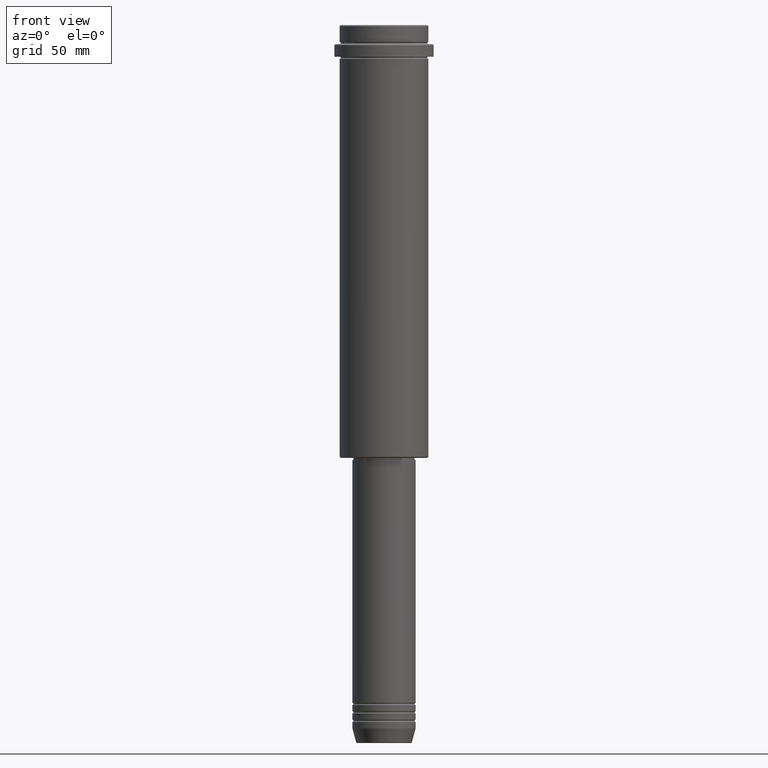
[diagram: clean part render]
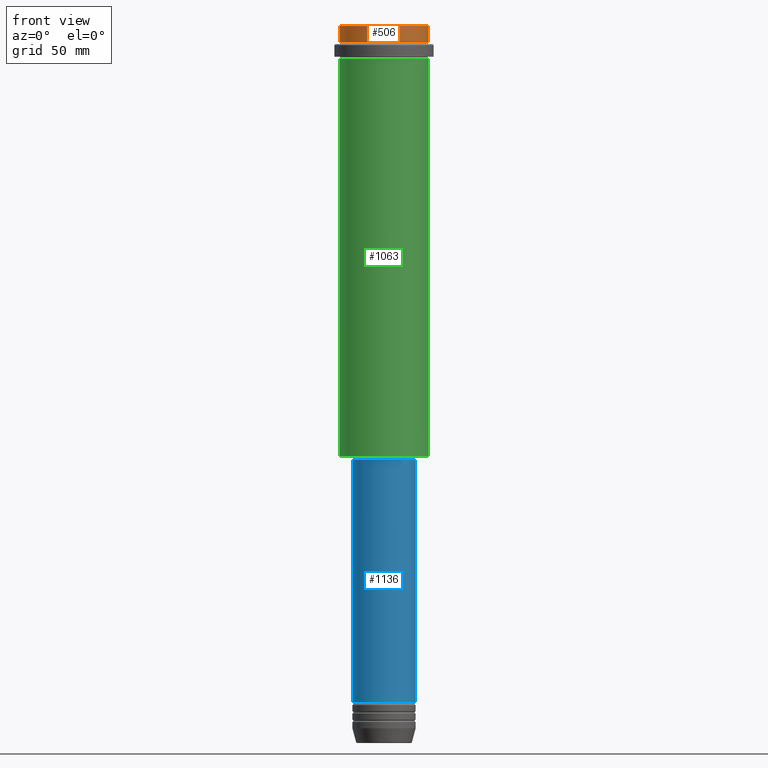
[diagram: same view with three faces highlighted in distinct colors, each labeled with its STEP entity id]
A machine part, front view with three faces highlighted in distinct colors.
Their STEP definitions:

[orange] entity #506 — the highlighted cylindrical surface (partial cylindrical patch) has radius 21 mm, axis along (-0, -0, 1).
#9 = CYLINDRICAL_SURFACE ( 'NONE', #196, 20.99999999999999645 ) ;
#14 = CARTESIAN_POINT ( 'NONE',  ( -20.99999999999999645, 2.571758278209441267E-15, -7.999999999999998224 ) ) ;
#28 = CARTESIAN_POINT ( 'NONE',  ( -20.99999999999999645, 2.571758278209441267E-15, -0.5000000000000628386 ) ) ;
#49 = EDGE_LOOP ( 'NONE', ( #268, #735, #1050, #1198 ) ) ;
#55 = VERTEX_POINT ( 'NONE', #28 ) ;
#63 = EDGE_CURVE ( 'NONE', #1059, #55, #701, .T. ) ;
#115 = DIRECTION ( 'NONE',  ( 1.000000000000000000, 0.000000000000000000, 0.000000000000000000 ) ) ;
#196 = AXIS2_PLACEMENT_3D ( 'NONE', #531, #859, #115 ) ;
#268 = ORIENTED_EDGE ( 'NONE', *, *, #63, .F. ) ;
#380 = LINE ( 'NONE', #608, #512 ) ;
#454 = EDGE_CURVE ( 'NONE', #598, #749, #380, .T. ) ;
#506 = ADVANCED_FACE ( 'NONE', ( #873 ), #9, .T. ) ;
#512 = VECTOR ( 'NONE', #841, 1000.000000000000000 ) ;
#531 = CARTESIAN_POINT ( 'NONE',  ( 0.000000000000000000, 0.000000000000000000, 0.000000000000000000 ) ) ;
#545 = AXIS2_PLACEMENT_3D ( 'NONE', #577, #1014, #595 ) ;
#577 = CARTESIAN_POINT ( 'NONE',  ( 0.000000000000000000, 0.000000000000000000, -0.5000000000000628386 ) ) ;
#595 = DIRECTION ( 'NONE',  ( 1.000000000000000000, 0.000000000000000000, 0.000000000000000000 ) ) ;
#598 = VERTEX_POINT ( 'NONE', #1408 ) ;
#608 = CARTESIAN_POINT ( 'NONE',  ( 20.99999999999999645, 0.000000000000000000, 0.000000000000000000 ) ) ;
#628 = DIRECTION ( 'NONE',  ( -0.000000000000000000, -0.000000000000000000, 1.000000000000000000 ) ) ;
#641 = CARTESIAN_POINT ( 'NONE',  ( 0.000000000000000000, 0.000000000000000000, -7.999999999999998224 ) ) ;
#701 = LINE ( 'NONE', #1134, #1185 ) ;
#735 = ORIENTED_EDGE ( 'NONE', *, *, #879, .T. ) ;
#749 = VERTEX_POINT ( 'NONE', #1256 ) ;
#807 = CIRCLE ( 'NONE', #545, 20.99999999999999645 ) ;
#841 = DIRECTION ( 'NONE',  ( -0.000000000000000000, -0.000000000000000000, 1.000000000000000000 ) ) ;
#859 = DIRECTION ( 'NONE',  ( -0.000000000000000000, -0.000000000000000000, 1.000000000000000000 ) ) ;
#873 = FACE_OUTER_BOUND ( 'NONE', #49, .T. ) ;
#879 = EDGE_CURVE ( 'NONE', #1059, #598, #1121, .T. ) ;
#895 = AXIS2_PLACEMENT_3D ( 'NONE', #641, #628, #1181 ) ;
#1014 = DIRECTION ( 'NONE',  ( 0.000000000000000000, 0.000000000000000000, -1.000000000000000000 ) ) ;
#1015 = DIRECTION ( 'NONE',  ( -0.000000000000000000, -0.000000000000000000, 1.000000000000000000 ) ) ;
#1050 = ORIENTED_EDGE ( 'NONE', *, *, #454, .T. ) ;
#1059 = VERTEX_POINT ( 'NONE', #14 ) ;
#1121 = CIRCLE ( 'NONE', #895, 20.99999999999999645 ) ;
#1134 = CARTESIAN_POINT ( 'NONE',  ( -20.99999999999999645, 2.571758278209441267E-15, 0.000000000000000000 ) ) ;
#1181 = DIRECTION ( 'NONE',  ( 1.000000000000000000, 0.000000000000000000, 0.000000000000000000 ) ) ;
#1185 = VECTOR ( 'NONE', #1015, 1000.000000000000000 ) ;
#1198 = ORIENTED_EDGE ( 'NONE', *, *, #1205, .T. ) ;
#1205 = EDGE_CURVE ( 'NONE', #749, #55, #807, .T. ) ;
#1256 = CARTESIAN_POINT ( 'NONE',  ( 20.99999999999999645, 0.000000000000000000, -0.5000000000000628386 ) ) ;
#1408 = CARTESIAN_POINT ( 'NONE',  ( 20.99999999999999645, 0.000000000000000000, -7.999999999999998224 ) ) ;

[blue] entity #1136 — the highlighted cylindrical surface (edge-blend (fillet) strip) has radius 15 mm, axis along (-0, -0, 1).
#4 = CARTESIAN_POINT ( 'NONE',  ( 0.000000000000000000, 0.000000000000000000, -205.9999999999999432 ) ) ;
#35 = CARTESIAN_POINT ( 'NONE',  ( 15.00000000000000000, 0.000000000000000000, -205.9999999999999432 ) ) ;
#50 = DIRECTION ( 'NONE',  ( -0.000000000000000000, -0.000000000000000000, 1.000000000000000000 ) ) ;
#117 = ORIENTED_EDGE ( 'NONE', *, *, #776, .F. ) ;
#189 = DIRECTION ( 'NONE',  ( -0.000000000000000000, -0.000000000000000000, 1.000000000000000000 ) ) ;
#213 = DIRECTION ( 'NONE',  ( -0.000000000000000000, -0.000000000000000000, 1.000000000000000000 ) ) ;
#270 = ORIENTED_EDGE ( 'NONE', *, *, #1412, .T. ) ;
#307 = DIRECTION ( 'NONE',  ( 1.000000000000000000, 0.000000000000000000, 0.000000000000000000 ) ) ;
#314 = EDGE_LOOP ( 'NONE', ( #117, #979, #270, #878 ) ) ;
#373 = CARTESIAN_POINT ( 'NONE',  ( -15.00000000000000000, 1.836970198721029589E-15, 0.000000000000000000 ) ) ;
#592 = DIRECTION ( 'NONE',  ( 1.000000000000000000, 0.000000000000000000, 0.000000000000000000 ) ) ;
#636 = EDGE_CURVE ( 'NONE', #1106, #1034, #1005, .T. ) ;
#709 = VECTOR ( 'NONE', #726, 1000.000000000000000 ) ;
#711 = CIRCLE ( 'NONE', #871, 15.00000000000000000 ) ;
#726 = DIRECTION ( 'NONE',  ( -0.000000000000000000, -0.000000000000000000, 1.000000000000000000 ) ) ;
#733 = VECTOR ( 'NONE', #1226, 1000.000000000000000 ) ;
#767 = CARTESIAN_POINT ( 'NONE',  ( -15.00000000000000000, 1.836970198721029589E-15, -320.9999999999998863 ) ) ;
#776 = EDGE_CURVE ( 'NONE', #1131, #1106, #1270, .T. ) ;
#778 = LINE ( 'NONE', #788, #733 ) ;
#788 = CARTESIAN_POINT ( 'NONE',  ( 15.00000000000000000, 0.000000000000000000, 0.000000000000000000 ) ) ;
#849 = AXIS2_PLACEMENT_3D ( 'NONE', #4, #189, #1298 ) ;
#871 = AXIS2_PLACEMENT_3D ( 'NONE', #1384, #50, #592 ) ;
#878 = ORIENTED_EDGE ( 'NONE', *, *, #636, .F. ) ;
#919 = VERTEX_POINT ( 'NONE', #1080 ) ;
#979 = ORIENTED_EDGE ( 'NONE', *, *, #1069, .T. ) ;
#1005 = CIRCLE ( 'NONE', #849, 15.00000000000000000 ) ;
#1034 = VERTEX_POINT ( 'NONE', #35 ) ;
#1053 = AXIS2_PLACEMENT_3D ( 'NONE', #1303, #213, #307 ) ;
#1069 = EDGE_CURVE ( 'NONE', #1131, #919, #711, .T. ) ;
#1080 = CARTESIAN_POINT ( 'NONE',  ( 15.00000000000000000, 0.000000000000000000, -320.9999999999998863 ) ) ;
#1103 = CARTESIAN_POINT ( 'NONE',  ( -15.00000000000000000, 1.836970198721029589E-15, -205.9999999999999432 ) ) ;
#1106 = VERTEX_POINT ( 'NONE', #1103 ) ;
#1131 = VERTEX_POINT ( 'NONE', #767 ) ;
#1136 = ADVANCED_FACE ( 'NONE', ( #1316 ), #1224, .T. ) ;
#1224 = CYLINDRICAL_SURFACE ( 'NONE', #1053, 15.00000000000000000 ) ;
#1226 = DIRECTION ( 'NONE',  ( -0.000000000000000000, -0.000000000000000000, 1.000000000000000000 ) ) ;
#1270 = LINE ( 'NONE', #373, #709 ) ;
#1298 = DIRECTION ( 'NONE',  ( 1.000000000000000000, 0.000000000000000000, 0.000000000000000000 ) ) ;
#1303 = CARTESIAN_POINT ( 'NONE',  ( 0.000000000000000000, 0.000000000000000000, 0.000000000000000000 ) ) ;
#1316 = FACE_OUTER_BOUND ( 'NONE', #314, .T. ) ;
#1384 = CARTESIAN_POINT ( 'NONE',  ( 0.000000000000000000, 0.000000000000000000, -320.9999999999998863 ) ) ;
#1412 = EDGE_CURVE ( 'NONE', #919, #1034, #778, .T. ) ;

[green] entity #1063 — the highlighted cylindrical surface (partial cylindrical patch) has radius 21 mm, axis along (-0, -0, 1).
#11 = VERTEX_POINT ( 'NONE', #242 ) ;
#18 = DIRECTION ( 'NONE',  ( -0.000000000000000000, -0.000000000000000000, 1.000000000000000000 ) ) ;
#71 = DIRECTION ( 'NONE',  ( -0.000000000000000000, -0.000000000000000000, 1.000000000000000000 ) ) ;
#87 = VECTOR ( 'NONE', #18, 1000.000000000000000 ) ;
#118 = LINE ( 'NONE', #198, #1004 ) ;
#192 = CARTESIAN_POINT ( 'NONE',  ( 0.000000000000000000, 0.000000000000000000, -16.00000000000000355 ) ) ;
#198 = CARTESIAN_POINT ( 'NONE',  ( 20.99999999999999645, 0.000000000000000000, 0.000000000000000000 ) ) ;
#207 = EDGE_CURVE ( 'NONE', #11, #1297, #118, .T. ) ;
#224 = ORIENTED_EDGE ( 'NONE', *, *, #469, .T. ) ;
#230 = VERTEX_POINT ( 'NONE', #974 ) ;
#242 = CARTESIAN_POINT ( 'NONE',  ( 20.99999999999999645, 0.000000000000000000, -204.5000000000000568 ) ) ;
#453 = EDGE_LOOP ( 'NONE', ( #509, #224, #561, #507 ) ) ;
#469 = EDGE_CURVE ( 'NONE', #230, #11, #1278, .T. ) ;
#494 = DIRECTION ( 'NONE',  ( -1.000000000000000000, 0.000000000000000000, 0.000000000000000000 ) ) ;
#507 = ORIENTED_EDGE ( 'NONE', *, *, #901, .F. ) ;
#509 = ORIENTED_EDGE ( 'NONE', *, *, #1107, .F. ) ;
#514 = AXIS2_PLACEMENT_3D ( 'NONE', #809, #886, #1320 ) ;
#534 = LINE ( 'NONE', #547, #87 ) ;
#547 = CARTESIAN_POINT ( 'NONE',  ( -20.99999999999999645, 2.571758278209441267E-15, 0.000000000000000000 ) ) ;
#556 = DIRECTION ( 'NONE',  ( -0.000000000000000000, -0.000000000000000000, 1.000000000000000000 ) ) ;
#561 = ORIENTED_EDGE ( 'NONE', *, *, #207, .T. ) ;
#570 = AXIS2_PLACEMENT_3D ( 'NONE', #192, #978, #1067 ) ;
#583 = CYLINDRICAL_SURFACE ( 'NONE', #514, 20.99999999999999645 ) ;
#798 = FACE_OUTER_BOUND ( 'NONE', #453, .T. ) ;
#809 = CARTESIAN_POINT ( 'NONE',  ( 0.000000000000000000, 0.000000000000000000, 0.000000000000000000 ) ) ;
#886 = DIRECTION ( 'NONE',  ( -0.000000000000000000, -0.000000000000000000, 1.000000000000000000 ) ) ;
#901 = EDGE_CURVE ( 'NONE', #1215, #1297, #1192, .T. ) ;
#906 = CARTESIAN_POINT ( 'NONE',  ( -20.99999999999999645, 2.571758278209441267E-15, -16.00000000000000355 ) ) ;
#974 = CARTESIAN_POINT ( 'NONE',  ( -20.99999999999999645, 2.571758278209441267E-15, -204.5000000000000568 ) ) ;
#978 = DIRECTION ( 'NONE',  ( -0.000000000000000000, -0.000000000000000000, 1.000000000000000000 ) ) ;
#1004 = VECTOR ( 'NONE', #556, 1000.000000000000000 ) ;
#1063 = ADVANCED_FACE ( 'NONE', ( #798 ), #583, .T. ) ;
#1067 = DIRECTION ( 'NONE',  ( 1.000000000000000000, 0.000000000000000000, 0.000000000000000000 ) ) ;
#1072 = AXIS2_PLACEMENT_3D ( 'NONE', #1268, #71, #494 ) ;
#1107 = EDGE_CURVE ( 'NONE', #230, #1215, #534, .T. ) ;
#1192 = CIRCLE ( 'NONE', #570, 20.99999999999999645 ) ;
#1215 = VERTEX_POINT ( 'NONE', #906 ) ;
#1268 = CARTESIAN_POINT ( 'NONE',  ( 0.000000000000000000, 0.000000000000000000, -204.5000000000000568 ) ) ;
#1278 = CIRCLE ( 'NONE', #1072, 20.99999999999999645 ) ;
#1297 = VERTEX_POINT ( 'NONE', #1314 ) ;
#1314 = CARTESIAN_POINT ( 'NONE',  ( 20.99999999999999645, 0.000000000000000000, -16.00000000000000355 ) ) ;
#1320 = DIRECTION ( 'NONE',  ( 1.000000000000000000, 0.000000000000000000, 0.000000000000000000 ) ) ;